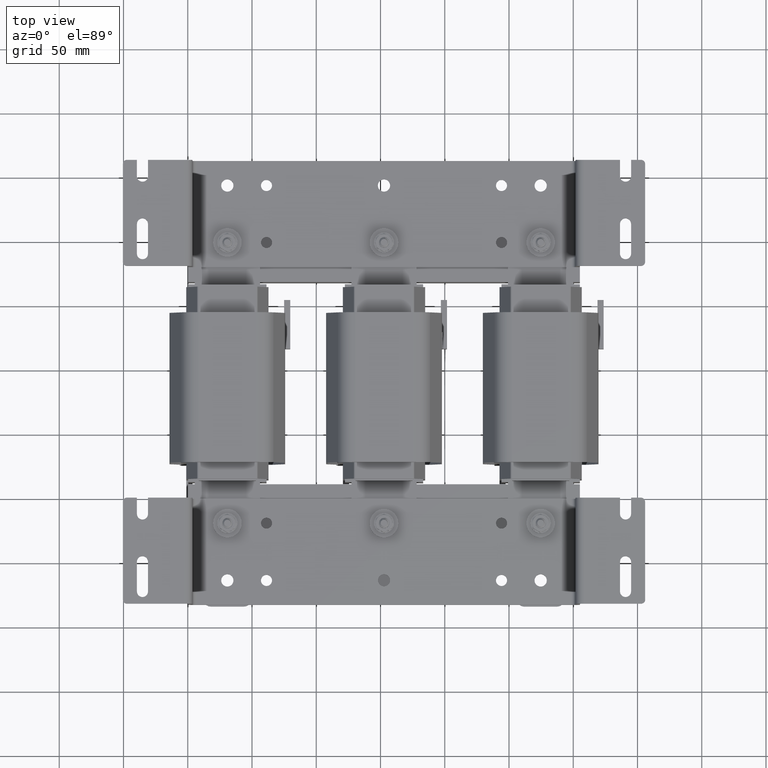
[diagram: clean part render]
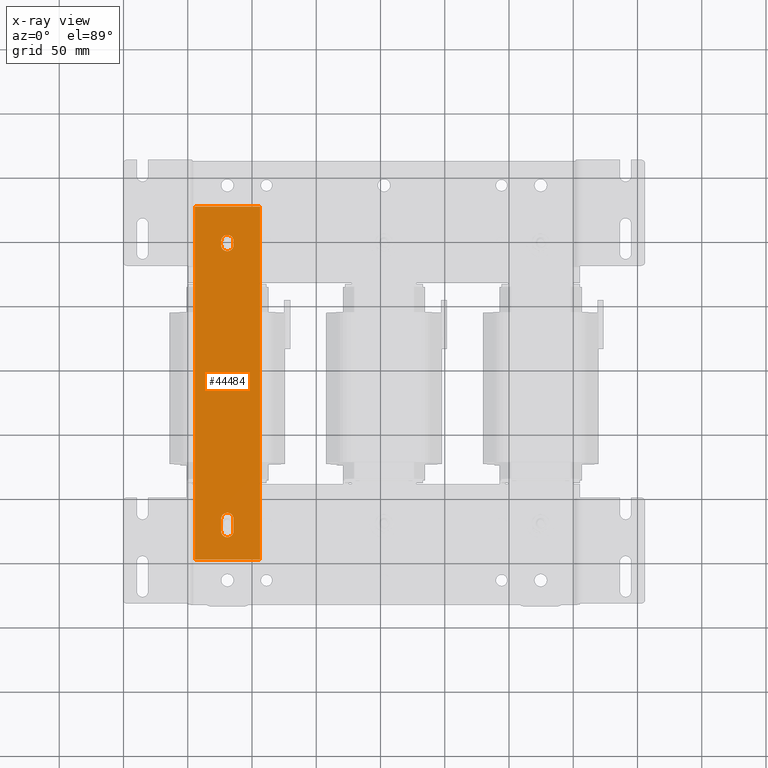
[diagram: x-ray — body ghosted, one internal face saturated and labeled with its STEP entity id]
A machine part, top view, then the same camera in x-ray: the body is ghosted and one INTERNAL B-rep face — a face not visible from any outside direction — is saturated and labeled: STEP entity #44484.
In plain terms, the highlighted planar face has unit normal (0, -0, -1).
Its self-contained STEP definition (entity closure, byte-faithful):
#1291=CIRCLE('',#47154,0.19);
#1293=CIRCLE('',#47158,0.19);
#1295=CIRCLE('',#47162,0.19);
#1297=CIRCLE('',#47166,0.19);
#2438=FACE_BOUND('',#7631,.T.);
#2439=FACE_BOUND('',#7632,.T.);
#3335=PLANE('',#47174);
#5084=FACE_OUTER_BOUND('',#7630,.T.);
#7630=EDGE_LOOP('',(#35913,#35914,#35915,#35916));
#7631=EDGE_LOOP('',(#35917,#35918,#35919,#35920));
#7632=EDGE_LOOP('',(#35921,#35922,#35923,#35924));
#11169=LINE('',#73162,#15450);
#11173=LINE('',#73173,#15454);
#11177=LINE('',#73186,#15458);
#11181=LINE('',#73197,#15462);
#11187=LINE('',#73211,#15468);
#11190=LINE('',#73216,#15471);
#11192=LINE('',#73220,#15473);
#11194=LINE('',#73223,#15475);
#15450=VECTOR('',#53349,0.393700787401575);
#15454=VECTOR('',#53361,0.393700787401575);
#15458=VECTOR('',#53373,0.393700787401575);
#15462=VECTOR('',#53385,0.393700787401575);
#15468=VECTOR('',#53395,0.393700787401575);
#15471=VECTOR('',#53400,0.393700787401575);
#15473=VECTOR('',#53404,0.393700787401575);
#15475=VECTOR('',#53408,0.393700787401575);
#20685=VERTEX_POINT('',#73152);
#20686=VERTEX_POINT('',#73153);
#20689=VERTEX_POINT('',#73161);
#20691=VERTEX_POINT('',#73167);
#20693=VERTEX_POINT('',#73176);
#20694=VERTEX_POINT('',#73177);
#20697=VERTEX_POINT('',#73185);
#20699=VERTEX_POINT('',#73191);
#20705=VERTEX_POINT('',#73209);
#20706=VERTEX_POINT('',#73210);
#20707=VERTEX_POINT('',#73215);
#20708=VERTEX_POINT('',#73219);
#26113=EDGE_CURVE('',#20685,#20686,#1291,.T.);
#26117=EDGE_CURVE('',#20686,#20689,#11169,.T.);
#26120=EDGE_CURVE('',#20689,#20691,#1293,.T.);
#26123=EDGE_CURVE('',#20691,#20685,#11173,.T.);
#26125=EDGE_CURVE('',#20693,#20694,#1295,.T.);
#26129=EDGE_CURVE('',#20694,#20697,#11177,.T.);
#26132=EDGE_CURVE('',#20697,#20699,#1297,.T.);
#26135=EDGE_CURVE('',#20699,#20693,#11181,.T.);
#26141=EDGE_CURVE('',#20705,#20706,#11187,.T.);
#26144=EDGE_CURVE('',#20706,#20707,#11190,.T.);
#26146=EDGE_CURVE('',#20707,#20708,#11192,.T.);
#26148=EDGE_CURVE('',#20708,#20705,#11194,.T.);
#35913=ORIENTED_EDGE('',*,*,#26141,.F.);
#35914=ORIENTED_EDGE('',*,*,#26148,.F.);
#35915=ORIENTED_EDGE('',*,*,#26146,.F.);
#35916=ORIENTED_EDGE('',*,*,#26144,.F.);
#35917=ORIENTED_EDGE('',*,*,#26113,.T.);
#35918=ORIENTED_EDGE('',*,*,#26117,.T.);
#35919=ORIENTED_EDGE('',*,*,#26120,.T.);
#35920=ORIENTED_EDGE('',*,*,#26123,.T.);
#35921=ORIENTED_EDGE('',*,*,#26125,.T.);
#35922=ORIENTED_EDGE('',*,*,#26129,.T.);
#35923=ORIENTED_EDGE('',*,*,#26132,.T.);
#35924=ORIENTED_EDGE('',*,*,#26135,.T.);
#44484=ADVANCED_FACE('',(#5084,#2438,#2439),#3335,.T.);
#47154=AXIS2_PLACEMENT_3D('',#73154,#53341,#53342);
#47158=AXIS2_PLACEMENT_3D('',#73168,#53354,#53355);
#47162=AXIS2_PLACEMENT_3D('',#73178,#53365,#53366);
#47166=AXIS2_PLACEMENT_3D('',#73192,#53378,#53379);
#47174=AXIS2_PLACEMENT_3D('',#73224,#53409,#53410);
#53341=DIRECTION('center_axis',(0.,0.,-1.));
#53342=DIRECTION('ref_axis',(0.,1.,0.));
#53349=DIRECTION('',(1.,0.,0.));
#53354=DIRECTION('center_axis',(0.,0.,-1.));
#53355=DIRECTION('ref_axis',(0.,-1.,0.));
#53361=DIRECTION('',(-1.,0.,0.));
#53365=DIRECTION('center_axis',(0.,0.,-1.));
#53366=DIRECTION('ref_axis',(0.,1.,0.));
#53373=DIRECTION('',(1.,0.,0.));
#53378=DIRECTION('center_axis',(0.,0.,-1.));
#53379=DIRECTION('ref_axis',(0.,-1.,0.));
#53385=DIRECTION('',(-1.,0.,0.));
#53395=DIRECTION('',(-2.62257407391769E-16,1.,0.));
#53400=DIRECTION('',(1.,2.42382077071876E-16,0.));
#53404=DIRECTION('',(0.,-1.,0.));
#53408=DIRECTION('',(-1.,-1.45429246243125E-16,0.));
#53409=DIRECTION('center_axis',(0.,0.,1.));
#53410=DIRECTION('ref_axis',(1.,0.,0.));
#73152=CARTESIAN_POINT('',(8.0125,-0.5025,0.0625));
#73153=CARTESIAN_POINT('',(8.0125,-0.122499999999999,0.0625));
#73154=CARTESIAN_POINT('Origin',(8.0125,-0.312499999999999,0.0625));
#73161=CARTESIAN_POINT('',(8.3825,-0.122499999999999,0.0625));
#73162=CARTESIAN_POINT('',(5.93,-0.122499999999999,0.0625));
#73167=CARTESIAN_POINT('',(8.3825,-0.5025,0.0625));
#73168=CARTESIAN_POINT('Origin',(8.3825,-0.312499999999999,0.0625));
#73173=CARTESIAN_POINT('',(6.115,-0.5025,0.0625));
#73176=CARTESIAN_POINT('',(-0.502499999999998,-0.502500000000001,0.0625));
#73177=CARTESIAN_POINT('',(-0.502499999999998,-0.1225,0.0625));
#73178=CARTESIAN_POINT('Origin',(-0.502499999999998,-0.3125,0.0625));
#73185=CARTESIAN_POINT('',(-0.3825,-0.1225,0.0625));
#73186=CARTESIAN_POINT('',(1.6725,-0.1225,0.0625));
#73191=CARTESIAN_POINT('',(-0.3825,-0.502500000000001,0.0625));
#73192=CARTESIAN_POINT('Origin',(-0.3825,-0.3125,0.0625));
#73197=CARTESIAN_POINT('',(1.7325,-0.502500000000001,0.0625));
#73209=CARTESIAN_POINT('',(-1.5625,-1.3125,0.0625));
#73210=CARTESIAN_POINT('',(-1.5625,0.6875,0.0625));
#73211=CARTESIAN_POINT('',(-1.5625,-1.3125,0.0625));
#73215=CARTESIAN_POINT('',(9.2575,0.687500000000003,0.0625));
#73216=CARTESIAN_POINT('',(-1.5625,0.6875,0.0625));
#73219=CARTESIAN_POINT('',(9.2575,-1.3125,0.0625));
#73220=CARTESIAN_POINT('',(9.2575,0.687500000000003,0.0625));
#73223=CARTESIAN_POINT('',(9.2575,-1.3125,0.0625));
#73224=CARTESIAN_POINT('Origin',(3.8475,-0.312499999999999,0.0625));